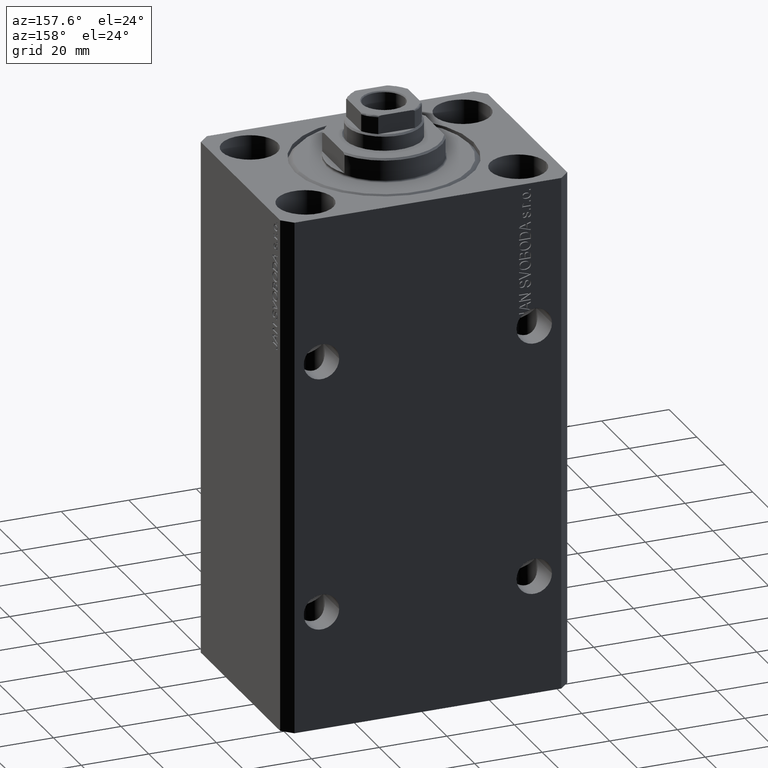
[diagram: clean part render]
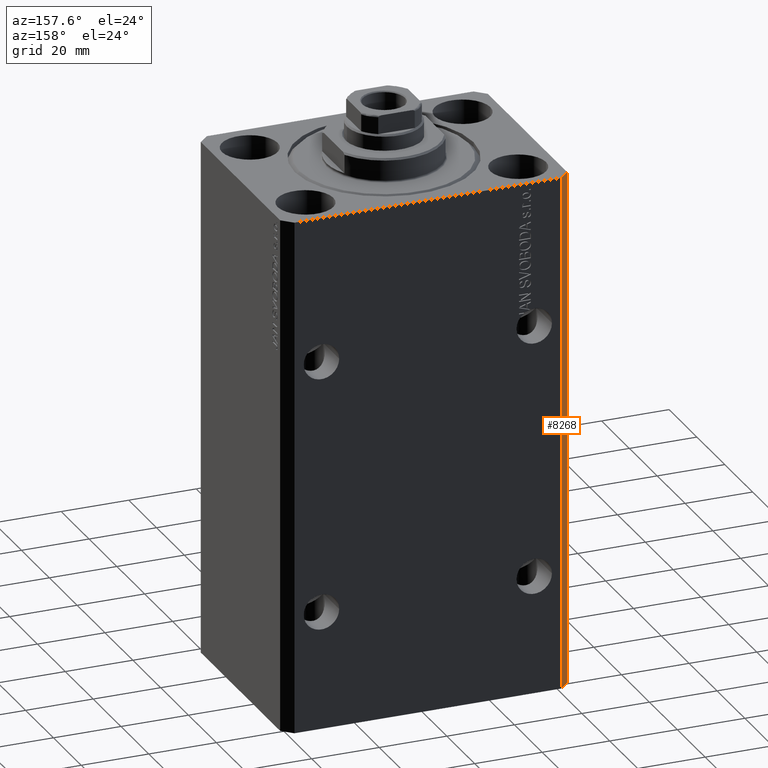
[diagram: same view with one face highlighted and labeled with its STEP entity id]
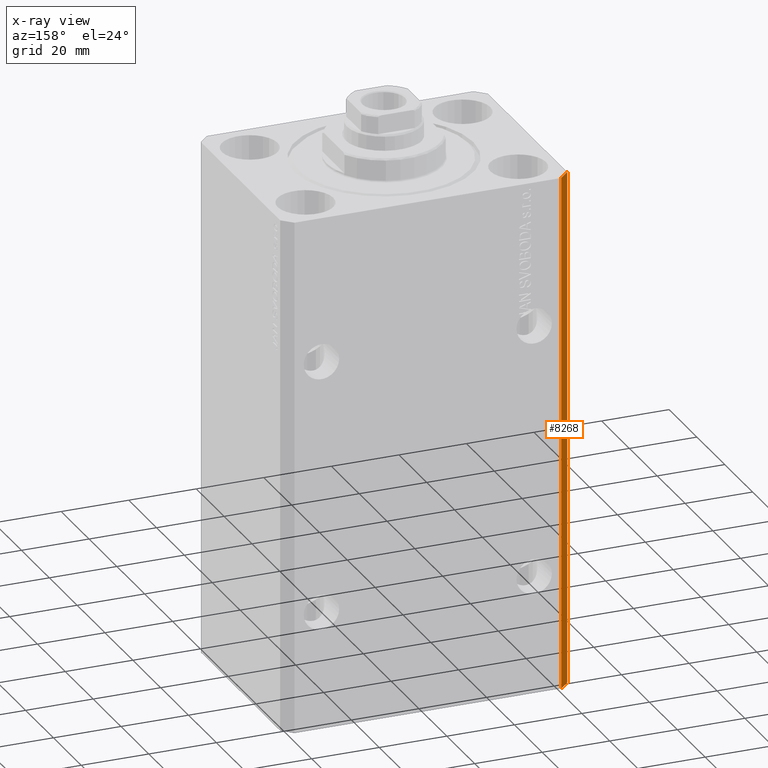
[diagram: x-ray of the same camera — body ghosted, the highlighted face saturated]
A machine part, auxiliary view. The second image highlights one B-rep face of the part: STEP entity #8268.
The next image is the same camera in x-ray: the body ghosted, the highlighted face saturated — about 0% of this face is hidden behind the body in this view.
In plain terms, the highlighted planar face has unit normal (-0.7071, 0.7071, 0).
Its self-contained STEP definition (entity closure, byte-faithful):
#1355 = DIRECTION ( 'NONE',  ( 0.000000000000000000, 0.000000000000000000, 1.000000000000000000 ) ) ;
#2031 = ORIENTED_EDGE ( 'NONE', *, *, #14592, .T. ) ;
#2913 = EDGE_LOOP ( 'NONE', ( #6000, #12330, #32127, #2031 ) ) ;
#3676 = CARTESIAN_POINT ( 'NONE',  ( -39.50000000000000711, 31.50000000000000000, -153.0000000000000000 ) ) ;
#6000 = ORIENTED_EDGE ( 'NONE', *, *, #6966, .F. ) ;
#6966 = EDGE_CURVE ( 'NONE', #7896, #30900, #35647, .T. ) ;
#7632 = VERTEX_POINT ( 'NONE', #31449 ) ;
#7896 = VERTEX_POINT ( 'NONE', #27485 ) ;
#8268 = ADVANCED_FACE ( 'NONE', ( #15983 ), #29970, .T. ) ;
#9324 = DIRECTION ( 'NONE',  ( -0.7071067811865471286, -0.7071067811865479058, 0.000000000000000000 ) ) ;
#11315 = CARTESIAN_POINT ( 'NONE',  ( -39.50000000000000711, 31.50000000000000000, 0.000000000000000000 ) ) ;
#12330 = ORIENTED_EDGE ( 'NONE', *, *, #16514, .F. ) ;
#12553 = CARTESIAN_POINT ( 'NONE',  ( -39.50000000000000711, 31.50000000000000000, -153.0000000000000000 ) ) ;
#14592 = EDGE_CURVE ( 'NONE', #7632, #30900, #43318, .T. ) ;
#15983 = FACE_OUTER_BOUND ( 'NONE', #2913, .T. ) ;
#16514 = EDGE_CURVE ( 'NONE', #40404, #7896, #44968, .T. ) ;
#18311 = CARTESIAN_POINT ( 'NONE',  ( -42.50000000000000000, 28.50000000000000000, -153.0000000000000000 ) ) ;
#19321 = CARTESIAN_POINT ( 'NONE',  ( -39.50000000000000711, 31.50000000000000000, -153.0000000000000000 ) ) ;
#20940 = DIRECTION ( 'NONE',  ( -0.7071067811865471286, -0.7071067811865479058, 0.000000000000000000 ) ) ;
#23408 = VECTOR ( 'NONE', #20940, 1000.000000000000000 ) ;
#23450 = DIRECTION ( 'NONE',  ( -0.7071067811865471286, -0.7071067811865479058, 0.000000000000000000 ) ) ;
#23801 = VECTOR ( 'NONE', #23450, 1000.000000000000000 ) ;
#23838 = DIRECTION ( 'NONE',  ( 0.000000000000000000, 0.000000000000000000, 1.000000000000000000 ) ) ;
#26522 = DIRECTION ( 'NONE',  ( -0.7071067811865479058, 0.7071067811865471286, 0.000000000000000000 ) ) ;
#27485 = CARTESIAN_POINT ( 'NONE',  ( -39.50000000000000711, 31.50000000000000000, 0.000000000000000000 ) ) ;
#28903 = EDGE_CURVE ( 'NONE', #40404, #7632, #30569, .T. ) ;
#29970 = PLANE ( 'NONE',  #35911 ) ;
#30569 = LINE ( 'NONE', #37241, #23801 ) ;
#30900 = VERTEX_POINT ( 'NONE', #31166 ) ;
#31166 = CARTESIAN_POINT ( 'NONE',  ( -42.50000000000000000, 28.50000000000000000, 0.000000000000000000 ) ) ;
#31449 = CARTESIAN_POINT ( 'NONE',  ( -42.50000000000000000, 28.50000000000000000, -153.0000000000000000 ) ) ;
#32127 = ORIENTED_EDGE ( 'NONE', *, *, #28903, .T. ) ;
#33076 = VECTOR ( 'NONE', #1355, 1000.000000000000000 ) ;
#35237 = VECTOR ( 'NONE', #23838, 1000.000000000000000 ) ;
#35647 = LINE ( 'NONE', #11315, #23408 ) ;
#35911 = AXIS2_PLACEMENT_3D ( 'NONE', #12553, #26522, #9324 ) ;
#37241 = CARTESIAN_POINT ( 'NONE',  ( -39.50000000000000711, 31.50000000000000000, -153.0000000000000000 ) ) ;
#40404 = VERTEX_POINT ( 'NONE', #19321 ) ;
#43318 = LINE ( 'NONE', #18311, #33076 ) ;
#44968 = LINE ( 'NONE', #3676, #35237 ) ;